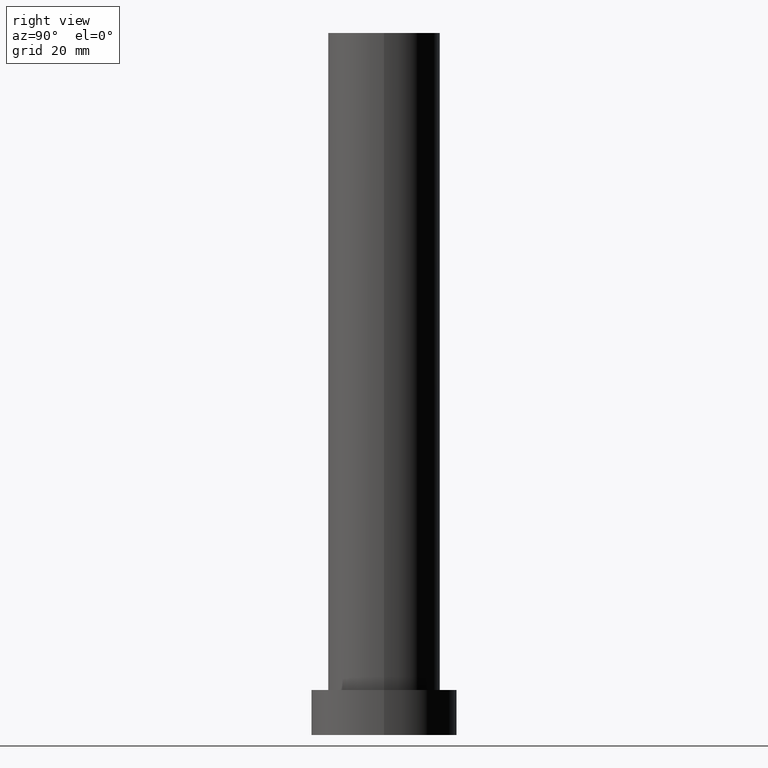
[diagram: clean part render]
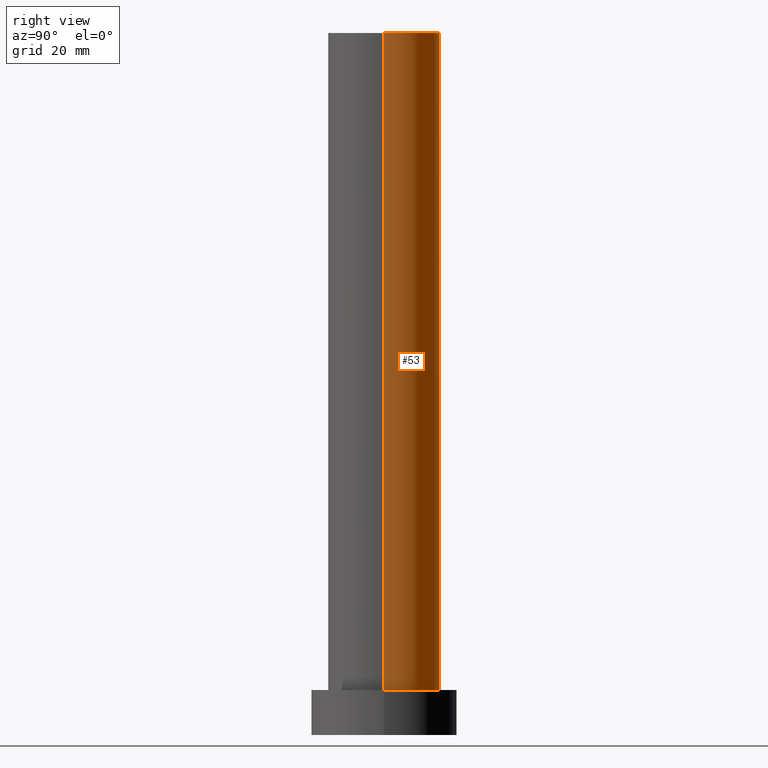
[diagram: same view with one face highlighted and labeled with its STEP entity id]
A machine part, right view. The second image highlights one B-rep face of the part: STEP entity #53.
In plain terms, the highlighted cylindrical surface (partial cylindrical patch) has radius 10 mm, axis along (-0, -0, -1).
Its self-contained STEP definition (entity closure, byte-faithful):
#7 = CARTESIAN_POINT ( 'NONE',  ( 10.00000000000000000, 1.224646799147353256E-15, 8.000000000000000000 ) ) ;
#8 = AXIS2_PLACEMENT_3D ( 'NONE', #252, #153, #132 ) ;
#10 = CARTESIAN_POINT ( 'NONE',  ( -10.00000000000000000, 0.000000000000000000, 125.0000000000000000 ) ) ;
#16 = CARTESIAN_POINT ( 'NONE',  ( 0.000000000000000000, 0.000000000000000000, 125.0000000000000000 ) ) ;
#18 = CYLINDRICAL_SURFACE ( 'NONE', #50, 10.00000000000000000 ) ;
#23 = EDGE_CURVE ( 'NONE', #225, #88, #190, .T. ) ;
#31 = CARTESIAN_POINT ( 'NONE',  ( -10.00000000000000000, 0.000000000000000000, 125.0000000000000000 ) ) ;
#35 = CIRCLE ( 'NONE', #152, 10.00000000000000000 ) ;
#43 = DIRECTION ( 'NONE',  ( -0.000000000000000000, -0.000000000000000000, -1.000000000000000000 ) ) ;
#46 = LINE ( 'NONE', #31, #129 ) ;
#50 = AXIS2_PLACEMENT_3D ( 'NONE', #16, #43, #115 ) ;
#53 = ADVANCED_FACE ( 'NONE', ( #191 ), #18, .T. ) ;
#58 = CARTESIAN_POINT ( 'NONE',  ( 10.00000000000000000, 1.224646799147353256E-15, 125.0000000000000000 ) ) ;
#66 = DIRECTION ( 'NONE',  ( 1.000000000000000000, 0.000000000000000000, 0.000000000000000000 ) ) ;
#74 = VECTOR ( 'NONE', #133, 1000.000000000000000 ) ;
#88 = VERTEX_POINT ( 'NONE', #7 ) ;
#104 = ORIENTED_EDGE ( 'NONE', *, *, #138, .F. ) ;
#114 = CIRCLE ( 'NONE', #8, 10.00000000000000000 ) ;
#115 = DIRECTION ( 'NONE',  ( -1.000000000000000000, 0.000000000000000000, 0.000000000000000000 ) ) ;
#129 = VECTOR ( 'NONE', #244, 1000.000000000000000 ) ;
#132 = DIRECTION ( 'NONE',  ( 1.000000000000000000, 0.000000000000000000, 0.000000000000000000 ) ) ;
#133 = DIRECTION ( 'NONE',  ( -0.000000000000000000, -0.000000000000000000, -1.000000000000000000 ) ) ;
#134 = EDGE_CURVE ( 'NONE', #225, #183, #35, .T. ) ;
#138 = EDGE_CURVE ( 'NONE', #183, #195, #46, .T. ) ;
#152 = AXIS2_PLACEMENT_3D ( 'NONE', #160, #240, #66 ) ;
#153 = DIRECTION ( 'NONE',  ( 0.000000000000000000, 0.000000000000000000, 1.000000000000000000 ) ) ;
#154 = ORIENTED_EDGE ( 'NONE', *, *, #219, .T. ) ;
#160 = CARTESIAN_POINT ( 'NONE',  ( 0.000000000000000000, 0.000000000000000000, 125.0000000000000000 ) ) ;
#162 = CARTESIAN_POINT ( 'NONE',  ( -10.00000000000000000, 0.000000000000000000, 8.000000000000000000 ) ) ;
#165 = ORIENTED_EDGE ( 'NONE', *, *, #23, .T. ) ;
#172 = EDGE_LOOP ( 'NONE', ( #212, #165, #154, #104 ) ) ;
#183 = VERTEX_POINT ( 'NONE', #10 ) ;
#190 = LINE ( 'NONE', #58, #74 ) ;
#191 = FACE_OUTER_BOUND ( 'NONE', #172, .T. ) ;
#195 = VERTEX_POINT ( 'NONE', #162 ) ;
#210 = CARTESIAN_POINT ( 'NONE',  ( 10.00000000000000000, 1.224646799147353256E-15, 125.0000000000000000 ) ) ;
#212 = ORIENTED_EDGE ( 'NONE', *, *, #134, .F. ) ;
#219 = EDGE_CURVE ( 'NONE', #88, #195, #114, .T. ) ;
#225 = VERTEX_POINT ( 'NONE', #210 ) ;
#240 = DIRECTION ( 'NONE',  ( 0.000000000000000000, 0.000000000000000000, 1.000000000000000000 ) ) ;
#244 = DIRECTION ( 'NONE',  ( -0.000000000000000000, -0.000000000000000000, -1.000000000000000000 ) ) ;
#252 = CARTESIAN_POINT ( 'NONE',  ( 0.000000000000000000, 0.000000000000000000, 8.000000000000000000 ) ) ;